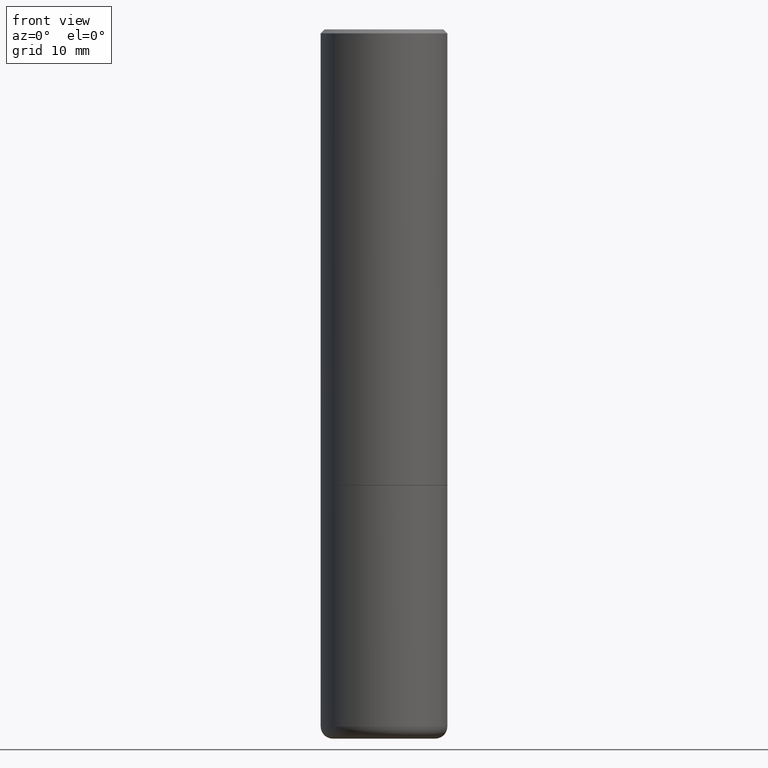
[diagram: clean part render]
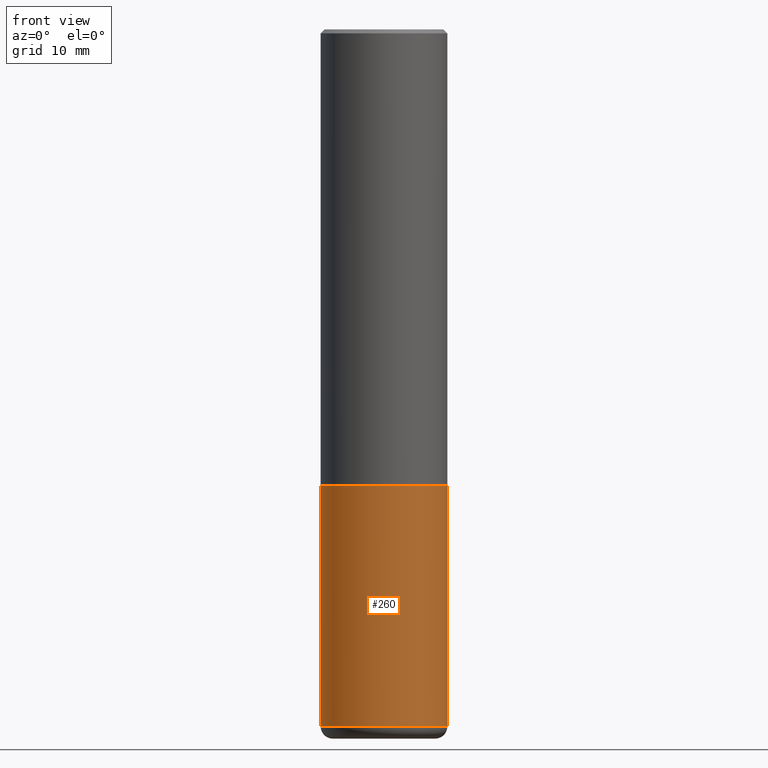
[diagram: same view with one face highlighted and labeled with its STEP entity id]
A machine part, front view. The second image highlights one B-rep face of the part: STEP entity #260.
In plain terms, the highlighted cylindrical surface (partial cylindrical patch) has radius 7.9375 mm, axis along (-0, 0, 1).
Its self-contained STEP definition (entity closure, byte-faithful):
#9 = VECTOR ( 'NONE', #81, 39.37007874015748143 ) ;
#20 = ORIENTED_EDGE ( 'NONE', *, *, #120, .T. ) ;
#21 = DIRECTION ( 'NONE',  ( -2.445468806185136597E-29, 3.491481338843145583E-15, 1.000000000000000000 ) ) ;
#72 = VERTEX_POINT ( 'NONE', #305 ) ;
#74 = CIRCLE ( 'NONE', #372, 0.3125000000000000000 ) ;
#75 = AXIS2_PLACEMENT_3D ( 'NONE', #307, #180, #208 ) ;
#76 = CARTESIAN_POINT ( 'NONE',  ( 8.412412693276869938E-29, -1.201069580562042103E-14, -3.439999999999999947 ) ) ;
#81 = DIRECTION ( 'NONE',  ( -2.445468806185136877E-29, 3.491481338843145188E-15, 1.000000000000000000 ) ) ;
#82 = CARTESIAN_POINT ( 'NONE',  ( -0.3125000000000000000, 2.220446049250313081E-15, -1.537167215704658232E-29 ) ) ;
#118 = EDGE_LOOP ( 'NONE', ( #259, #20, #134, #247 ) ) ;
#120 = EDGE_CURVE ( 'NONE', #217, #72, #74, .T. ) ;
#125 = CARTESIAN_POINT ( 'NONE',  ( -0.3125000000000000000, -9.790249756370107944E-15, -3.439999999999999947 ) ) ;
#134 = ORIENTED_EDGE ( 'NONE', *, *, #250, .T. ) ;
#160 = CARTESIAN_POINT ( 'NONE',  ( -0.3125000000000000000, -7.712818359758435078E-15, -2.249999999999999556 ) ) ;
#161 = CARTESIAN_POINT ( 'NONE',  ( 0.3125000000000000000, -1.003800884917403522E-14, -2.249999999999999556 ) ) ;
#175 = FACE_OUTER_BOUND ( 'NONE', #118, .T. ) ;
#177 = CARTESIAN_POINT ( 'NONE',  ( 0.3125000000000000000, -2.182175836776958347E-15, 1.523805242436230075E-29 ) ) ;
#180 = DIRECTION ( 'NONE',  ( -2.445468806185136597E-29, 3.491481338843145583E-15, 1.000000000000000000 ) ) ;
#184 = DIRECTION ( 'NONE',  ( 1.000000000000000000, -6.982962677686269077E-15, 0.000000000000000000 ) ) ;
#194 = VERTEX_POINT ( 'NONE', #161 ) ;
#208 = DIRECTION ( 'NONE',  ( 1.000000000000000000, -6.982962677686266711E-15, 4.876176775795936353E-29 ) ) ;
#217 = VERTEX_POINT ( 'NONE', #125 ) ;
#240 = EDGE_CURVE ( 'NONE', #217, #418, #243, .T. ) ;
#243 = LINE ( 'NONE', #82, #9 ) ;
#247 = ORIENTED_EDGE ( 'NONE', *, *, #395, .F. ) ;
#250 = EDGE_CURVE ( 'NONE', #72, #194, #402, .T. ) ;
#259 = ORIENTED_EDGE ( 'NONE', *, *, #240, .F. ) ;
#260 = ADVANCED_FACE ( 'NONE', ( #175 ), #346, .T. ) ;
#279 = DIRECTION ( 'NONE',  ( -2.445468806185136877E-29, 3.491481338843145188E-15, 1.000000000000000000 ) ) ;
#290 = DIRECTION ( 'NONE',  ( -2.445468806185136597E-29, 3.491481338843145583E-15, 1.000000000000000000 ) ) ;
#305 = CARTESIAN_POINT ( 'NONE',  ( 0.3125000000000000000, -1.419287164239737937E-14, -3.439999999999999947 ) ) ;
#307 = CARTESIAN_POINT ( 'NONE',  ( 0.000000000000000000, 0.000000000000000000, 0.000000000000000000 ) ) ;
#325 = DIRECTION ( 'NONE',  ( 1.000000000000000000, -6.982962677686269077E-15, 0.000000000000000000 ) ) ;
#346 = CYLINDRICAL_SURFACE ( 'NONE', #75, 0.3125000000000000000 ) ;
#352 = CARTESIAN_POINT ( 'NONE',  ( 5.502304813916556222E-29, -7.855833012397076871E-15, -2.249999999999999556 ) ) ;
#361 = VECTOR ( 'NONE', #279, 39.37007874015748143 ) ;
#372 = AXIS2_PLACEMENT_3D ( 'NONE', #76, #290, #325 ) ;
#376 = CIRCLE ( 'NONE', #407, 0.3125000000000000000 ) ;
#395 = EDGE_CURVE ( 'NONE', #418, #194, #376, .T. ) ;
#402 = LINE ( 'NONE', #177, #361 ) ;
#407 = AXIS2_PLACEMENT_3D ( 'NONE', #352, #21, #184 ) ;
#418 = VERTEX_POINT ( 'NONE', #160 ) ;